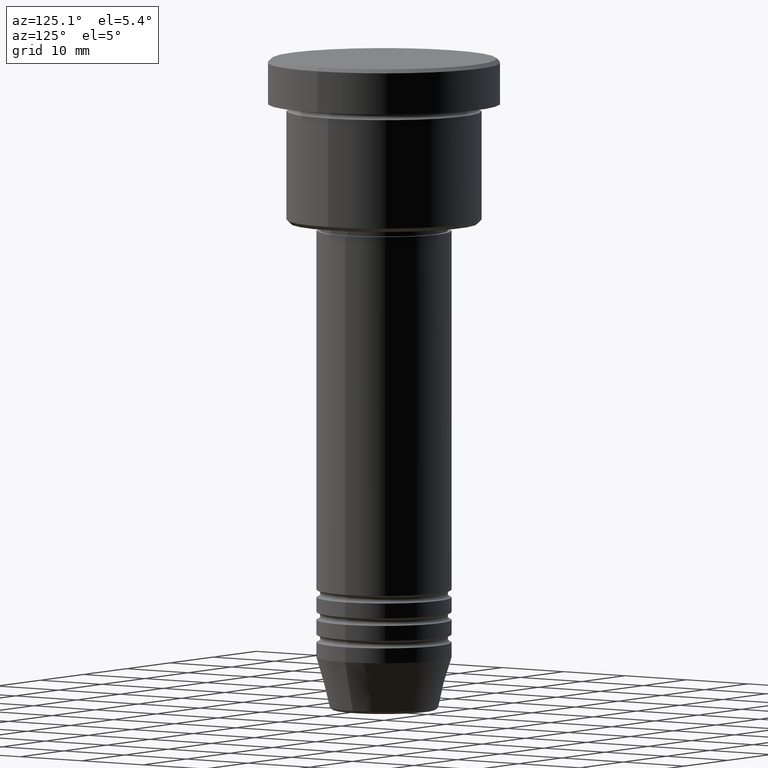
[diagram: clean part render]
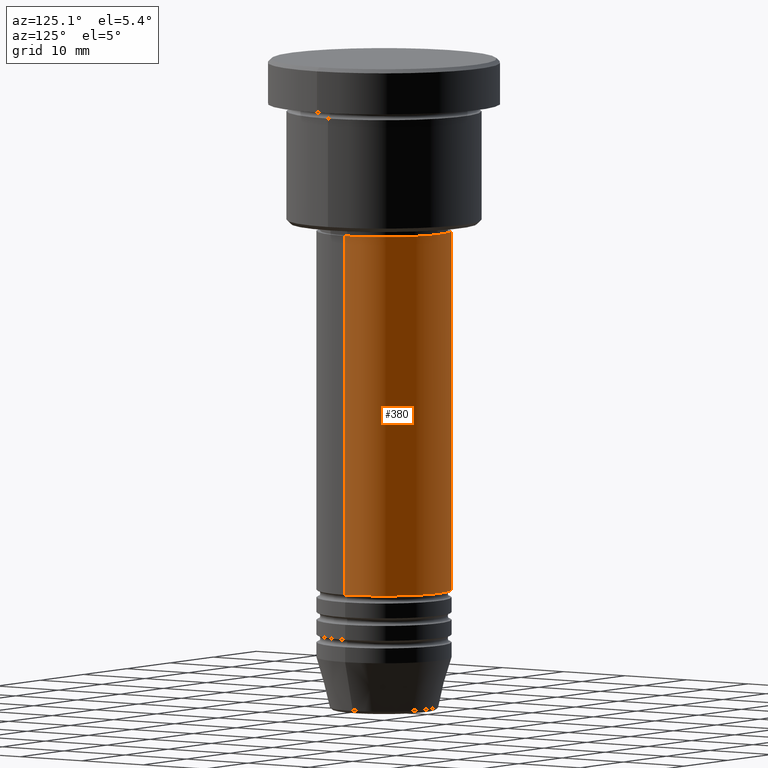
[diagram: same view with one face highlighted and labeled with its STEP entity id]
A machine part, auxiliary view. The second image highlights one B-rep face of the part: STEP entity #380.
In plain terms, the highlighted cylindrical surface (partial cylindrical patch) has radius 9 mm, axis along (-0, -0, 1).
Its self-contained STEP definition (entity closure, byte-faithful):
#18 = DIRECTION ( 'NONE',  ( 1.000000000000000000, 0.000000000000000000, 0.000000000000000000 ) ) ;
#36 = EDGE_CURVE ( 'NONE', #57, #576, #1159, .T. ) ;
#57 = VERTEX_POINT ( 'NONE', #379 ) ;
#80 = AXIS2_PLACEMENT_3D ( 'NONE', #766, #134, #1048 ) ;
#83 = CARTESIAN_POINT ( 'NONE',  ( -9.000000000000000000, 1.102182119232617714E-15, -22.99999999999996447 ) ) ;
#104 = EDGE_CURVE ( 'NONE', #767, #933, #253, .T. ) ;
#123 = EDGE_LOOP ( 'NONE', ( #306, #624, #1123, #221 ) ) ;
#134 = DIRECTION ( 'NONE',  ( -0.000000000000000000, -0.000000000000000000, 1.000000000000000000 ) ) ;
#186 = CARTESIAN_POINT ( 'NONE',  ( 9.000000000000000000, 0.000000000000000000, -70.99999999999997158 ) ) ;
#187 = DIRECTION ( 'NONE',  ( -0.000000000000000000, -0.000000000000000000, 1.000000000000000000 ) ) ;
#221 = ORIENTED_EDGE ( 'NONE', *, *, #448, .F. ) ;
#253 = CIRCLE ( 'NONE', #80, 9.000000000000000000 ) ;
#306 = ORIENTED_EDGE ( 'NONE', *, *, #104, .T. ) ;
#368 = DIRECTION ( 'NONE',  ( -0.000000000000000000, -0.000000000000000000, 1.000000000000000000 ) ) ;
#379 = CARTESIAN_POINT ( 'NONE',  ( 9.000000000000000000, 0.000000000000000000, -22.99999999999996447 ) ) ;
#380 = ADVANCED_FACE ( 'NONE', ( #453 ), #914, .T. ) ;
#392 = LINE ( 'NONE', #479, #833 ) ;
#419 = LINE ( 'NONE', #445, #1134 ) ;
#445 = CARTESIAN_POINT ( 'NONE',  ( -9.000000000000000000, 1.102182119232617714E-15, 0.000000000000000000 ) ) ;
#448 = EDGE_CURVE ( 'NONE', #767, #57, #392, .T. ) ;
#453 = FACE_OUTER_BOUND ( 'NONE', #123, .T. ) ;
#479 = CARTESIAN_POINT ( 'NONE',  ( 9.000000000000000000, 0.000000000000000000, 0.000000000000000000 ) ) ;
#555 = DIRECTION ( 'NONE',  ( 1.000000000000000000, 0.000000000000000000, 0.000000000000000000 ) ) ;
#576 = VERTEX_POINT ( 'NONE', #83 ) ;
#608 = EDGE_CURVE ( 'NONE', #933, #576, #419, .T. ) ;
#624 = ORIENTED_EDGE ( 'NONE', *, *, #608, .T. ) ;
#639 = DIRECTION ( 'NONE',  ( -0.000000000000000000, -0.000000000000000000, 1.000000000000000000 ) ) ;
#735 = AXIS2_PLACEMENT_3D ( 'NONE', #1090, #187, #555 ) ;
#766 = CARTESIAN_POINT ( 'NONE',  ( 0.000000000000000000, 0.000000000000000000, -70.99999999999997158 ) ) ;
#767 = VERTEX_POINT ( 'NONE', #186 ) ;
#769 = DIRECTION ( 'NONE',  ( -0.000000000000000000, -0.000000000000000000, 1.000000000000000000 ) ) ;
#804 = AXIS2_PLACEMENT_3D ( 'NONE', #1091, #368, #18 ) ;
#833 = VECTOR ( 'NONE', #769, 1000.000000000000000 ) ;
#914 = CYLINDRICAL_SURFACE ( 'NONE', #735, 9.000000000000000000 ) ;
#933 = VERTEX_POINT ( 'NONE', #1014 ) ;
#1014 = CARTESIAN_POINT ( 'NONE',  ( -9.000000000000000000, 1.102182119232617714E-15, -70.99999999999997158 ) ) ;
#1048 = DIRECTION ( 'NONE',  ( 1.000000000000000000, 0.000000000000000000, 0.000000000000000000 ) ) ;
#1090 = CARTESIAN_POINT ( 'NONE',  ( 0.000000000000000000, 0.000000000000000000, 0.000000000000000000 ) ) ;
#1091 = CARTESIAN_POINT ( 'NONE',  ( 0.000000000000000000, 0.000000000000000000, -22.99999999999996447 ) ) ;
#1123 = ORIENTED_EDGE ( 'NONE', *, *, #36, .F. ) ;
#1134 = VECTOR ( 'NONE', #639, 1000.000000000000000 ) ;
#1159 = CIRCLE ( 'NONE', #804, 9.000000000000000000 ) ;